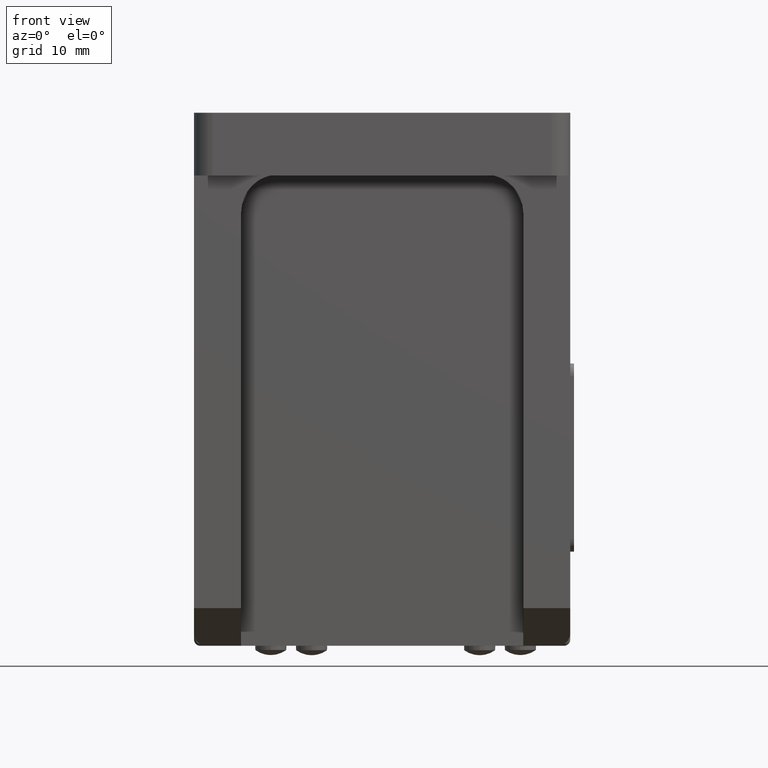
[diagram: clean part render]
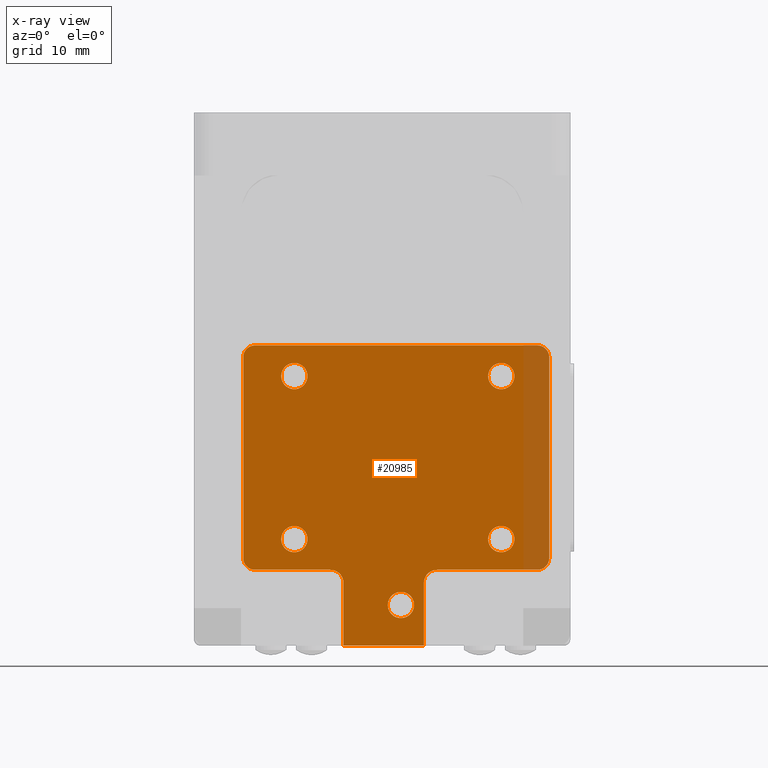
[diagram: x-ray — body ghosted, one internal face saturated and labeled with its STEP entity id]
A machine part, front view, then the same camera in x-ray: the body is ghosted and one INTERNAL B-rep face — a face not visible from any outside direction — is saturated and labeled: STEP entity #20985.
In plain terms, the highlighted planar face has unit normal (-0, -1, 0).
Its self-contained STEP definition (entity closure, byte-faithful):
#1 = DIRECTION ( 'NONE',  ( 6.982962677686266711E-15, 1.000000000000000000, -2.438088387897967896E-29 ) ) ;
#53 = EDGE_CURVE ( 'NONE', #18970, #19223, #9695, .T. ) ;
#187 = AXIS2_PLACEMENT_3D ( 'NONE', #2098, #10803, #21912 ) ;
#327 = DIRECTION ( 'NONE',  ( 1.000000000000000000, -6.982962677686266711E-15, -3.491481338843133355E-15 ) ) ;
#457 = DIRECTION ( 'NONE',  ( -1.000000000000000000, 6.608470384673547868E-15, 6.608470384673547868E-15 ) ) ;
#617 = VERTEX_POINT ( 'NONE', #6112 ) ;
#927 = EDGE_LOOP ( 'NONE', ( #3854, #33508 ) ) ;
#1044 = AXIS2_PLACEMENT_3D ( 'NONE', #31623, #9253, #3620 ) ;
#1061 = VERTEX_POINT ( 'NONE', #34232 ) ;
#1149 = VERTEX_POINT ( 'NONE', #6780 ) ;
#1157 = VERTEX_POINT ( 'NONE', #9849 ) ;
#1738 = DIRECTION ( 'NONE',  ( 1.000000000000000000, -6.608470384673547868E-15, -3.304235192336773934E-15 ) ) ;
#1787 = DIRECTION ( 'NONE',  ( 6.982962677686266711E-15, 1.000000000000000000, -2.438088387897967896E-29 ) ) ;
#2098 = CARTESIAN_POINT ( 'NONE',  ( 26.85800241935144328, -9.325813218244485725, 44.00000000000152767 ) ) ;
#2224 = AXIS2_PLACEMENT_3D ( 'NONE', #11402, #31228, #11578 ) ;
#2339 = DIRECTION ( 'NONE',  ( -1.000000000000000000, 6.608470384673547868E-15, 3.304235192336773934E-15 ) ) ;
#2347 = VERTEX_POINT ( 'NONE', #17702 ) ;
#2839 = CARTESIAN_POINT ( 'NONE',  ( -11.89199758064845014, -9.325813218244215719, 73.00000000000167688 ) ) ;
#2847 = EDGE_CURVE ( 'NONE', #27291, #16057, #26913, .T. ) ;
#3024 = DIRECTION ( 'NONE',  ( 1.000000000000000000, -6.982962677686266711E-15, -3.491481338843133355E-15 ) ) ;
#3099 = CIRCLE ( 'NONE', #187, 1.900000000000002354 ) ;
#3100 = DIRECTION ( 'NONE',  ( -1.000000000000000000, 6.608470384673547868E-15, 0.000000000000000000 ) ) ;
#3305 = AXIS2_PLACEMENT_3D ( 'NONE', #7401, #13571, #24671 ) ;
#3388 = VERTEX_POINT ( 'NONE', #32875 ) ;
#3620 = DIRECTION ( 'NONE',  ( 1.000000000000000000, -7.304098846218112382E-15, 0.000000000000000000 ) ) ;
#3654 = FACE_BOUND ( 'NONE', #29146, .T. ) ;
#3854 = ORIENTED_EDGE ( 'NONE', *, *, #9692, .T. ) ;
#3981 = DIRECTION ( 'NONE',  ( -6.982962677686266711E-15, -1.000000000000000000, 2.438088387897967896E-29 ) ) ;
#4197 = DIRECTION ( 'NONE',  ( 6.982962677686266711E-15, 1.000000000000000000, -2.438088387897967896E-29 ) ) ;
#4281 = DIRECTION ( 'NONE',  ( 1.000000000000000000, -7.304098846218139203E-15, -3.652049423109069602E-15 ) ) ;
#4288 = CARTESIAN_POINT ( 'NONE',  ( -6.141997580648570931, -9.325813218244254799, 40.00000000000164846 ) ) ;
#4535 = CARTESIAN_POINT ( 'NONE',  ( -18.14199758064843948, -9.325813218244171310, 77.90000000000169678 ) ) ;
#5045 = ORIENTED_EDGE ( 'NONE', *, *, #5602, .T. ) ;
#5116 = CARTESIAN_POINT ( 'NONE',  ( 8.758002419351557322, -9.325813218244359604, 76.00000000000159162 ) ) ;
#5602 = EDGE_CURVE ( 'NONE', #617, #25143, #17699, .T. ) ;
#5782 = EDGE_CURVE ( 'NONE', #1061, #18970, #7304, .T. ) ;
#5910 = EDGE_LOOP ( 'NONE', ( #6006, #19075 ) ) ;
#6006 = ORIENTED_EDGE ( 'NONE', *, *, #35004, .T. ) ;
#6112 = CARTESIAN_POINT ( 'NONE',  ( 19.00800241935154489, -9.325813218244432434, 73.00000000000157740 ) ) ;
#6716 = ORIENTED_EDGE ( 'NONE', *, *, #5782, .T. ) ;
#6780 = CARTESIAN_POINT ( 'NONE',  ( -13.99199758064854571, -9.325813218244201508, 47.00000000000166978 ) ) ;
#6927 = EDGE_CURVE ( 'NONE', #23490, #3388, #26424, .T. ) ;
#7052 = DIRECTION ( 'NONE',  ( 1.000000000000000000, -7.304098846218139203E-15, -7.304098846218139203E-15 ) ) ;
#7112 = CIRCLE ( 'NONE', #11177, 2.100000000000000977 ) ;
#7200 = EDGE_CURVE ( 'NONE', #29339, #35689, #12708, .T. ) ;
#7257 = AXIS2_PLACEMENT_3D ( 'NONE', #29247, #3981, #7052 ) ;
#7304 = LINE ( 'NONE', #5116, #22863 ) ;
#7401 = CARTESIAN_POINT ( 'NONE',  ( 21.10800241935154631, -9.325813218244444869, 73.00000000000156319 ) ) ;
#7426 = ORIENTED_EDGE ( 'NONE', *, *, #30449, .T. ) ;
#7664 = CARTESIAN_POINT ( 'NONE',  ( -11.89199758064854429, -9.325813218244215719, 47.00000000000166267 ) ) ;
#8126 = CARTESIAN_POINT ( 'NONE',  ( -4.041997580648604149, -9.325813218244270786, 30.00000000000164135 ) ) ;
#8177 = ORIENTED_EDGE ( 'NONE', *, *, #24805, .T. ) ;
#8423 = CARTESIAN_POINT ( 'NONE',  ( -20.04199758064844517, -9.325813218244157099, 76.00000000000169109 ) ) ;
#8488 = LINE ( 'NONE', #16842, #29221 ) ;
#8532 = CIRCLE ( 'NONE', #28262, 2.100000000000000977 ) ;
#8609 = LINE ( 'NONE', #8423, #25114 ) ;
#8616 = ORIENTED_EDGE ( 'NONE', *, *, #9587, .T. ) ;
#8944 = DIRECTION ( 'NONE',  ( 6.982962677686266711E-15, 1.000000000000000000, -2.438088387897967896E-29 ) ) ;
#9099 = FACE_OUTER_BOUND ( 'NONE', #20745, .T. ) ;
#9253 = DIRECTION ( 'NONE',  ( -6.982962677686266711E-15, -1.000000000000000000, 2.438088387897967896E-29 ) ) ;
#9281 = ORIENTED_EDGE ( 'NONE', *, *, #26723, .T. ) ;
#9305 = DIRECTION ( 'NONE',  ( -1.000000000000000000, 6.608470384673547868E-15, 6.608470384673547868E-15 ) ) ;
#9401 = CARTESIAN_POINT ( 'NONE',  ( -18.14199758064843948, -9.325813218244171310, 77.90000000000169678 ) ) ;
#9486 = CARTESIAN_POINT ( 'NONE',  ( 21.10800241935154631, -9.325813218244444869, 73.00000000000156319 ) ) ;
#9565 = EDGE_CURVE ( 'NONE', #25143, #617, #10906, .T. ) ;
#9587 = EDGE_CURVE ( 'NONE', #23832, #2347, #35755, .T. ) ;
#9692 = EDGE_CURVE ( 'NONE', #3388, #23490, #8532, .T. ) ;
#9695 = CIRCLE ( 'NONE', #30045, 2.100000000000000977 ) ;
#9741 = VERTEX_POINT ( 'NONE', #17188 ) ;
#9849 = CARTESIAN_POINT ( 'NONE',  ( 23.20800241935145891, -9.325813218244459080, 47.00000000000154898 ) ) ;
#10219 = ORIENTED_EDGE ( 'NONE', *, *, #31440, .T. ) ;
#10257 = CARTESIAN_POINT ( 'NONE',  ( 26.85800241935155341, -9.325813218244485725, 77.90000000000152625 ) ) ;
#10583 = EDGE_CURVE ( 'NONE', #22441, #20111, #11957, .T. ) ;
#10595 = CIRCLE ( 'NONE', #22212, 2.100000000000000977 ) ;
#10744 = CIRCLE ( 'NONE', #22949, 1.899999999999999023 ) ;
#10803 = DIRECTION ( 'NONE',  ( -6.982962677686266711E-15, -1.000000000000000000, 2.438088387897967896E-29 ) ) ;
#10906 = CIRCLE ( 'NONE', #3305, 2.100000000000000977 ) ;
#11050 = CARTESIAN_POINT ( 'NONE',  ( -18.14199758064860646, -9.325813218244171310, 30.00000000000168754 ) ) ;
#11089 = DIRECTION ( 'NONE',  ( 6.982962677686266711E-15, 1.000000000000000000, -2.438088387897967896E-29 ) ) ;
#11177 = AXIS2_PLACEMENT_3D ( 'NONE', #4288, #26652, #1738 ) ;
#11402 = CARTESIAN_POINT ( 'NONE',  ( 5.108002419351416634, -9.325813218244334735, 36.50000000000160583 ) ) ;
#11468 = FACE_BOUND ( 'NONE', #5910, .T. ) ;
#11578 = DIRECTION ( 'NONE',  ( -1.000000000000000000, 6.608470384673547868E-15, 3.304235192336773934E-15 ) ) ;
#11693 = EDGE_LOOP ( 'NONE', ( #26129, #17619 ) ) ;
#11717 = VECTOR ( 'NONE', #327, 1000.000000000000000 ) ;
#11759 = AXIS2_PLACEMENT_3D ( 'NONE', #15293, #12742, #21121 ) ;
#11828 = DIRECTION ( 'NONE',  ( -1.000000000000000000, 6.982962677686266711E-15, 3.491481338843133355E-15 ) ) ;
#11880 = DIRECTION ( 'NONE',  ( -1.000000000000000000, 6.608470384673547868E-15, 3.304235192336773934E-15 ) ) ;
#11957 = LINE ( 'NONE', #27802, #27586 ) ;
#12063 = DIRECTION ( 'NONE',  ( 6.982962677686266711E-15, 1.000000000000000000, -2.438088387897967896E-29 ) ) ;
#12708 = LINE ( 'NONE', #4535, #24719 ) ;
#12742 = DIRECTION ( 'NONE',  ( 6.982962677686266711E-15, 1.000000000000000000, -2.438088387897967896E-29 ) ) ;
#12785 = ORIENTED_EDGE ( 'NONE', *, *, #10583, .T. ) ;
#12906 = CIRCLE ( 'NONE', #11759, 2.100000000000000977 ) ;
#13079 = CARTESIAN_POINT ( 'NONE',  ( 28.75800241935144896, -9.325813218244499936, 44.00000000000152056 ) ) ;
#13241 = CIRCLE ( 'NONE', #2224, 2.100000000000000977 ) ;
#13270 = VERTEX_POINT ( 'NONE', #32851 ) ;
#13288 = AXIS2_PLACEMENT_3D ( 'NONE', #26073, #12063, #11880 ) ;
#13318 = ORIENTED_EDGE ( 'NONE', *, *, #27498, .T. ) ;
#13571 = DIRECTION ( 'NONE',  ( 6.982962677686266711E-15, 1.000000000000000000, -2.438088387897967896E-29 ) ) ;
#14150 = DIRECTION ( 'NONE',  ( -3.491481338843133355E-15, 0.000000000000000000, -1.000000000000000000 ) ) ;
#14673 = CIRCLE ( 'NONE', #23382, 2.100000000000000977 ) ;
#15293 = CARTESIAN_POINT ( 'NONE',  ( -11.89199758064854429, -9.325813218244215719, 47.00000000000166267 ) ) ;
#15305 = EDGE_CURVE ( 'NONE', #35689, #9741, #16713, .T. ) ;
#15356 = ORIENTED_EDGE ( 'NONE', *, *, #31857, .T. ) ;
#15444 = DIRECTION ( 'NONE',  ( 3.491481338843133355E-15, -0.000000000000000000, 1.000000000000000000 ) ) ;
#15470 = DIRECTION ( 'NONE',  ( 3.491481338843133355E-15, -0.000000000000000000, 1.000000000000000000 ) ) ;
#16057 = VERTEX_POINT ( 'NONE', #20444 ) ;
#16283 = EDGE_CURVE ( 'NONE', #9741, #31295, #8609, .T. ) ;
#16537 = CARTESIAN_POINT ( 'NONE',  ( -4.041997580648569510, -9.325813218244270786, 40.00000000000164135 ) ) ;
#16713 = CIRCLE ( 'NONE', #1044, 1.900000000000005906 ) ;
#16764 = CIRCLE ( 'NONE', #13288, 2.100000000000000977 ) ;
#16842 = CARTESIAN_POINT ( 'NONE',  ( -18.14199758064856383, -9.325813218244171310, 42.10000000000169251 ) ) ;
#16985 = ORIENTED_EDGE ( 'NONE', *, *, #34917, .T. ) ;
#17188 = CARTESIAN_POINT ( 'NONE',  ( -20.04199758064844517, -9.325813218244157099, 76.00000000000169109 ) ) ;
#17545 = VECTOR ( 'NONE', #15444, 1000.000000000000000 ) ;
#17619 = ORIENTED_EDGE ( 'NONE', *, *, #21749, .T. ) ;
#17654 = FACE_BOUND ( 'NONE', #17972, .T. ) ;
#17668 = DIRECTION ( 'NONE',  ( 1.000000000000000000, -6.608470384673547868E-15, -3.304235192336773934E-15 ) ) ;
#17699 = CIRCLE ( 'NONE', #18263, 2.100000000000000977 ) ;
#17702 = CARTESIAN_POINT ( 'NONE',  ( -6.141997580648560273, -9.325813218244254799, 42.10000000000164988 ) ) ;
#17931 = VERTEX_POINT ( 'NONE', #22924 ) ;
#17972 = EDGE_LOOP ( 'NONE', ( #5045, #35454 ) ) ;
#18263 = AXIS2_PLACEMENT_3D ( 'NONE', #9486, #8944, #9305 ) ;
#18343 = CARTESIAN_POINT ( 'NONE',  ( 21.10800241935145749, -9.325813218244444869, 47.00000000000155609 ) ) ;
#18606 = AXIS2_PLACEMENT_3D ( 'NONE', #18343, #1787, #2339 ) ;
#18859 = DIRECTION ( 'NONE',  ( 1.000000000000000000, -6.982962677686266711E-15, -3.491481338843133355E-15 ) ) ;
#18970 = VERTEX_POINT ( 'NONE', #20816 ) ;
#19075 = ORIENTED_EDGE ( 'NONE', *, *, #35133, .T. ) ;
#19223 = VERTEX_POINT ( 'NONE', #32270 ) ;
#20111 = VERTEX_POINT ( 'NONE', #8126 ) ;
#20378 = FACE_BOUND ( 'NONE', #927, .T. ) ;
#20397 = DIRECTION ( 'NONE',  ( -1.000000000000000000, 6.608470384673547868E-15, 3.304235192336773934E-15 ) ) ;
#20444 = CARTESIAN_POINT ( 'NONE',  ( 28.75800241935155199, -9.325813218244499936, 76.00000000000152056 ) ) ;
#20745 = EDGE_LOOP ( 'NONE', ( #27823, #10219, #15356, #26525, #21304, #28888, #24379, #22096, #7426, #8616, #9281, #12785, #13318, #6716 ) ) ;
#20816 = CARTESIAN_POINT ( 'NONE',  ( 8.758002419351431200, -9.325813218244359604, 40.00000000000159162 ) ) ;
#20985 = ADVANCED_FACE ( 'NONE', ( #9099, #17654, #3654, #20378, #11468, #25843 ), #34377, .T. ) ;
#21121 = DIRECTION ( 'NONE',  ( -1.000000000000000000, 6.608470384673547868E-15, 3.304235192336773934E-15 ) ) ;
#21304 = ORIENTED_EDGE ( 'NONE', *, *, #32962, .T. ) ;
#21367 = AXIS2_PLACEMENT_3D ( 'NONE', #33836, #25653, #11828 ) ;
#21459 = CARTESIAN_POINT ( 'NONE',  ( 28.75800241935155910, -9.325813218244499936, 76.00000000000150635 ) ) ;
#21749 = EDGE_CURVE ( 'NONE', #1157, #17931, #16764, .T. ) ;
#21912 = DIRECTION ( 'NONE',  ( 1.000000000000000000, -7.304098846218126581E-15, -3.652049423109063291E-15 ) ) ;
#22096 = ORIENTED_EDGE ( 'NONE', *, *, #16283, .T. ) ;
#22212 = AXIS2_PLACEMENT_3D ( 'NONE', #25864, #34217, #20397 ) ;
#22441 = VERTEX_POINT ( 'NONE', #16537 ) ;
#22649 = DIRECTION ( 'NONE',  ( 6.982962677686266711E-15, 1.000000000000000000, -2.438088387897967896E-29 ) ) ;
#22863 = VECTOR ( 'NONE', #15470, 1000.000000000000000 ) ;
#22924 = CARTESIAN_POINT ( 'NONE',  ( 19.00800241935145607, -9.325813218244432434, 47.00000000000156319 ) ) ;
#22949 = AXIS2_PLACEMENT_3D ( 'NONE', #29019, #32101, #4281 ) ;
#23382 = AXIS2_PLACEMENT_3D ( 'NONE', #7664, #1, #32577 ) ;
#23490 = VERTEX_POINT ( 'NONE', #32348 ) ;
#23582 = EDGE_CURVE ( 'NONE', #17931, #1157, #29649, .T. ) ;
#23832 = VERTEX_POINT ( 'NONE', #26303 ) ;
#24379 = ORIENTED_EDGE ( 'NONE', *, *, #15305, .T. ) ;
#24671 = DIRECTION ( 'NONE',  ( -1.000000000000000000, 6.608470384673547868E-15, 0.000000000000000000 ) ) ;
#24719 = VECTOR ( 'NONE', #27090, 1000.000000000000000 ) ;
#24805 = EDGE_CURVE ( 'NONE', #28493, #34045, #13241, .T. ) ;
#25114 = VECTOR ( 'NONE', #25503, 1000.000000000000000 ) ;
#25143 = VERTEX_POINT ( 'NONE', #35562 ) ;
#25503 = DIRECTION ( 'NONE',  ( -3.491481338843133355E-15, 0.000000000000000000, -1.000000000000000000 ) ) ;
#25653 = DIRECTION ( 'NONE',  ( -6.982962677686266711E-15, -1.000000000000000000, 2.438088387897967896E-29 ) ) ;
#25843 = FACE_BOUND ( 'NONE', #11693, .T. ) ;
#25864 = CARTESIAN_POINT ( 'NONE',  ( 5.108002419351416634, -9.325813218244334735, 36.50000000000160583 ) ) ;
#26073 = CARTESIAN_POINT ( 'NONE',  ( 21.10800241935145749, -9.325813218244444869, 47.00000000000155609 ) ) ;
#26129 = ORIENTED_EDGE ( 'NONE', *, *, #23582, .T. ) ;
#26206 = CARTESIAN_POINT ( 'NONE',  ( 10.85800241935143262, -9.325813218244373815, 40.00000000000159162 ) ) ;
#26303 = CARTESIAN_POINT ( 'NONE',  ( -18.14199758064856383, -9.325813218244171310, 42.10000000000169251 ) ) ;
#26424 = CIRCLE ( 'NONE', #29340, 2.100000000000000977 ) ;
#26525 = ORIENTED_EDGE ( 'NONE', *, *, #2847, .T. ) ;
#26652 = DIRECTION ( 'NONE',  ( 6.982962677686266711E-15, 1.000000000000000000, -2.438088387897967896E-29 ) ) ;
#26723 = EDGE_CURVE ( 'NONE', #2347, #22441, #7112, .T. ) ;
#26913 = LINE ( 'NONE', #21459, #17545 ) ;
#27051 = CARTESIAN_POINT ( 'NONE',  ( -20.04199758064855530, -9.325813218244157099, 44.00000000000169109 ) ) ;
#27090 = DIRECTION ( 'NONE',  ( -1.000000000000000000, 6.982962677686266711E-15, 3.491481338843133355E-15 ) ) ;
#27291 = VERTEX_POINT ( 'NONE', #13079 ) ;
#27498 = EDGE_CURVE ( 'NONE', #20111, #1061, #33777, .T. ) ;
#27586 = VECTOR ( 'NONE', #14150, 1000.000000000000000 ) ;
#27802 = CARTESIAN_POINT ( 'NONE',  ( -4.041997580648440724, -9.325813218244270786, 76.00000000000163425 ) ) ;
#27823 = ORIENTED_EDGE ( 'NONE', *, *, #53, .T. ) ;
#28262 = AXIS2_PLACEMENT_3D ( 'NONE', #2839, #22649, #457 ) ;
#28493 = VERTEX_POINT ( 'NONE', #31650 ) ;
#28888 = ORIENTED_EDGE ( 'NONE', *, *, #7200, .T. ) ;
#29019 = CARTESIAN_POINT ( 'NONE',  ( -18.14199758064855672, -9.325813218244171310, 44.00000000000169109 ) ) ;
#29146 = EDGE_LOOP ( 'NONE', ( #16985, #8177 ) ) ;
#29221 = VECTOR ( 'NONE', #3024, 1000.000000000000000 ) ;
#29247 = CARTESIAN_POINT ( 'NONE',  ( 26.85800241935154631, -9.325813218244485725, 76.00000000000153477 ) ) ;
#29339 = VERTEX_POINT ( 'NONE', #10257 ) ;
#29340 = AXIS2_PLACEMENT_3D ( 'NONE', #33653, #11089, #3100 ) ;
#29649 = CIRCLE ( 'NONE', #18606, 2.100000000000000977 ) ;
#30045 = AXIS2_PLACEMENT_3D ( 'NONE', #26206, #4197, #17668 ) ;
#30449 = EDGE_CURVE ( 'NONE', #31295, #23832, #10744, .T. ) ;
#31228 = DIRECTION ( 'NONE',  ( 6.982962677686266711E-15, 1.000000000000000000, -2.438088387897967896E-29 ) ) ;
#31295 = VERTEX_POINT ( 'NONE', #27051 ) ;
#31440 = EDGE_CURVE ( 'NONE', #19223, #32691, #8488, .T. ) ;
#31623 = CARTESIAN_POINT ( 'NONE',  ( -18.14199758064844659, -9.325813218244171310, 76.00000000000167688 ) ) ;
#31650 = CARTESIAN_POINT ( 'NONE',  ( 7.208002419351418055, -9.325813218244348946, 36.50000000000159872 ) ) ;
#31857 = EDGE_CURVE ( 'NONE', #32691, #27291, #3099, .T. ) ;
#32101 = DIRECTION ( 'NONE',  ( -6.982962677686266711E-15, -1.000000000000000000, 2.438088387897967896E-29 ) ) ;
#32270 = CARTESIAN_POINT ( 'NONE',  ( 10.85800241935143973, -9.325813218244373815, 42.10000000000158593 ) ) ;
#32348 = CARTESIAN_POINT ( 'NONE',  ( -9.791997580648450494, -9.325813218244228153, 73.00000000000166267 ) ) ;
#32577 = DIRECTION ( 'NONE',  ( -1.000000000000000000, 6.608470384673547868E-15, 3.304235192336773934E-15 ) ) ;
#32691 = VERTEX_POINT ( 'NONE', #32919 ) ;
#32851 = CARTESIAN_POINT ( 'NONE',  ( -9.791997580648542865, -9.325813218244228153, 47.00000000000165556 ) ) ;
#32875 = CARTESIAN_POINT ( 'NONE',  ( -13.99199758064845156, -9.325813218244201508, 73.00000000000169109 ) ) ;
#32914 = VECTOR ( 'NONE', #18859, 1000.000000000000000 ) ;
#32919 = CARTESIAN_POINT ( 'NONE',  ( 26.85800241935143617, -9.325813218244485725, 42.10000000000152909 ) ) ;
#32962 = EDGE_CURVE ( 'NONE', #16057, #29339, #35102, .T. ) ;
#33470 = CARTESIAN_POINT ( 'NONE',  ( 3.008002419351415657, -9.325813218244320524, 36.50000000000161293 ) ) ;
#33508 = ORIENTED_EDGE ( 'NONE', *, *, #6927, .T. ) ;
#33653 = CARTESIAN_POINT ( 'NONE',  ( -11.89199758064845014, -9.325813218244215719, 73.00000000000167688 ) ) ;
#33777 = LINE ( 'NONE', #11050, #11717 ) ;
#33836 = CARTESIAN_POINT ( 'NONE',  ( -18.14199758064844659, -9.325813218244171310, 76.00000000000167688 ) ) ;
#34045 = VERTEX_POINT ( 'NONE', #33470 ) ;
#34217 = DIRECTION ( 'NONE',  ( 6.982962677686266711E-15, 1.000000000000000000, -2.438088387897967896E-29 ) ) ;
#34232 = CARTESIAN_POINT ( 'NONE',  ( 8.758002419351393897, -9.325813218244359604, 30.00000000000159517 ) ) ;
#34377 = PLANE ( 'NONE',  #21367 ) ;
#34917 = EDGE_CURVE ( 'NONE', #34045, #28493, #10595, .T. ) ;
#35004 = EDGE_CURVE ( 'NONE', #1149, #13270, #12906, .T. ) ;
#35102 = CIRCLE ( 'NONE', #7257, 1.899999999999999023 ) ;
#35133 = EDGE_CURVE ( 'NONE', #13270, #1149, #14673, .T. ) ;
#35386 = CARTESIAN_POINT ( 'NONE',  ( -18.14199758064856383, -9.325813218244171310, 42.10000000000169251 ) ) ;
#35454 = ORIENTED_EDGE ( 'NONE', *, *, #9565, .T. ) ;
#35562 = CARTESIAN_POINT ( 'NONE',  ( 23.20800241935154773, -9.325813218244459080, 73.00000000000154898 ) ) ;
#35689 = VERTEX_POINT ( 'NONE', #9401 ) ;
#35755 = LINE ( 'NONE', #35386, #32914 ) ;